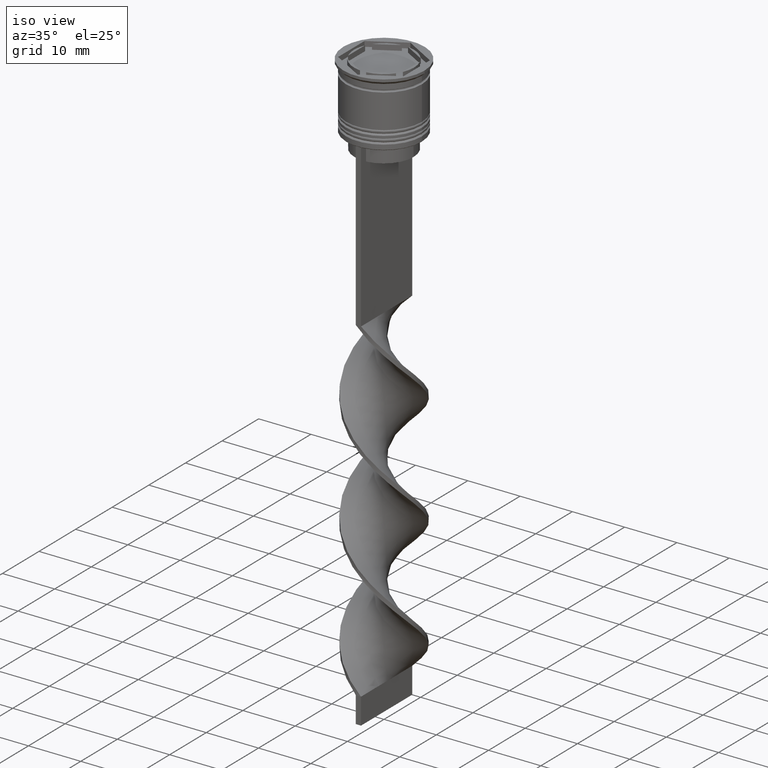
[diagram: clean part render]
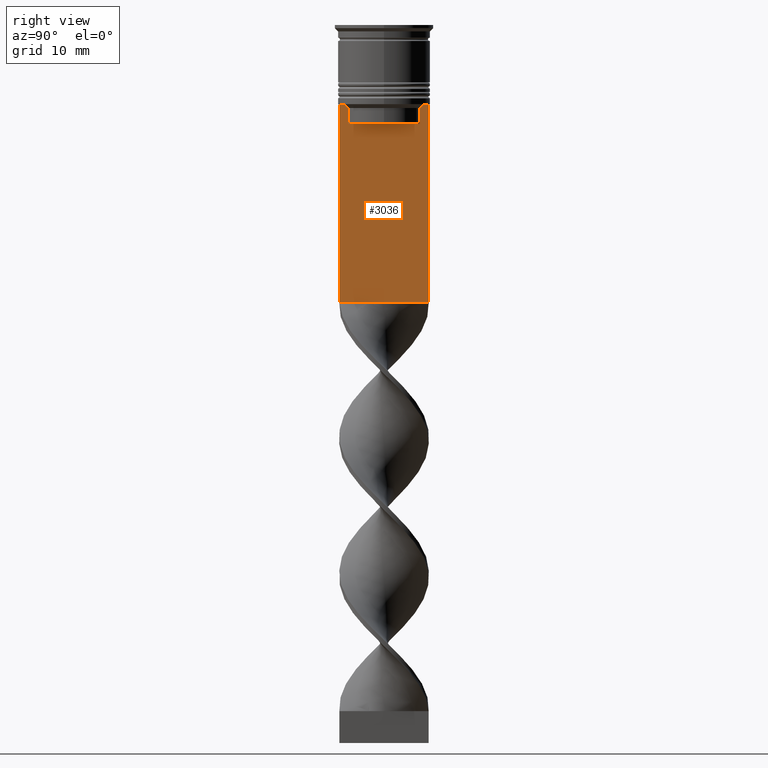
[diagram: tour spotlight — one face highlighted and labeled with its STEP entity id]
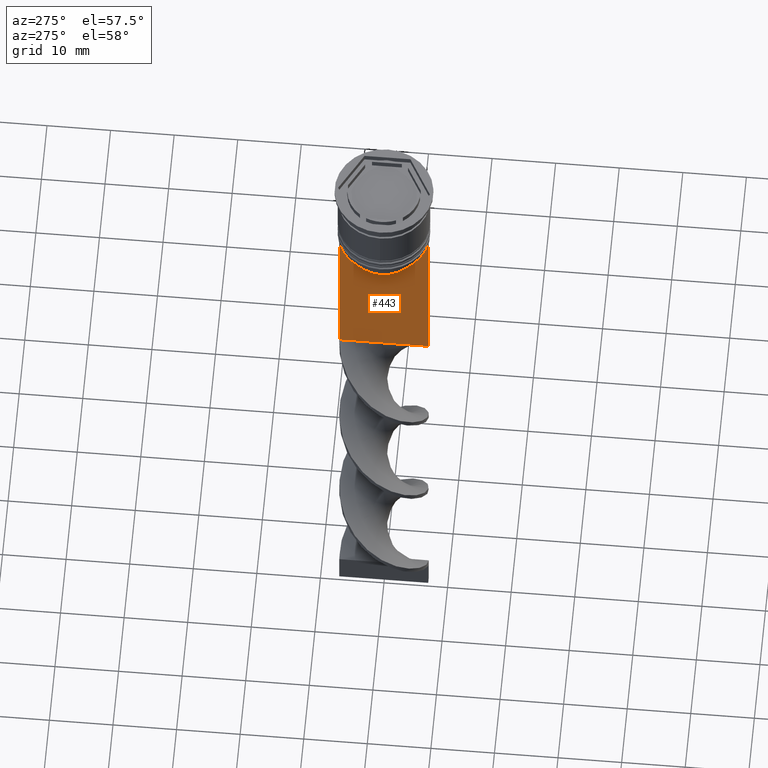
[diagram: tour spotlight — one face highlighted and labeled with its STEP entity id]
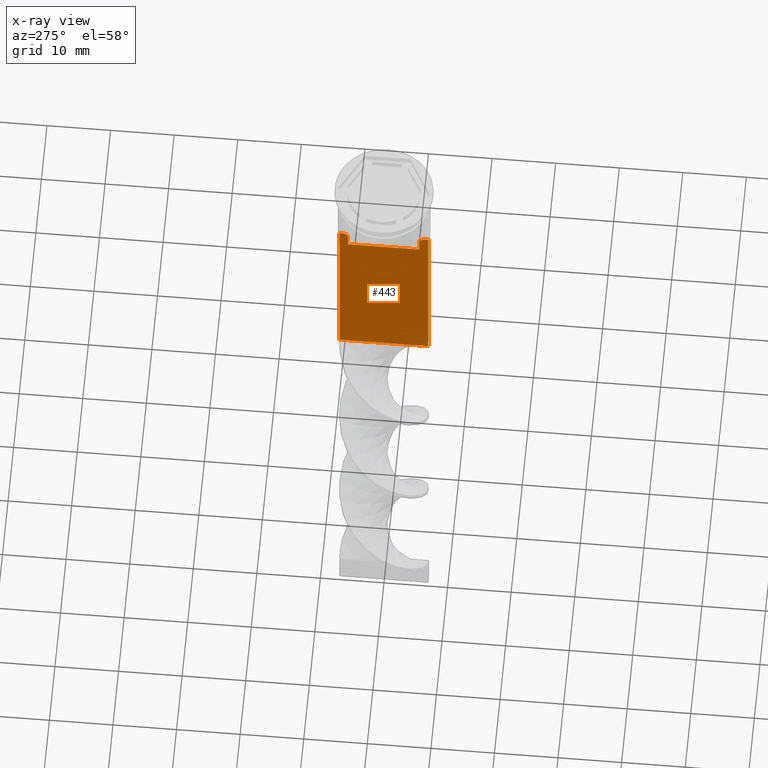
[diagram: x-ray of the same camera — body ghosted, this tour face saturated]
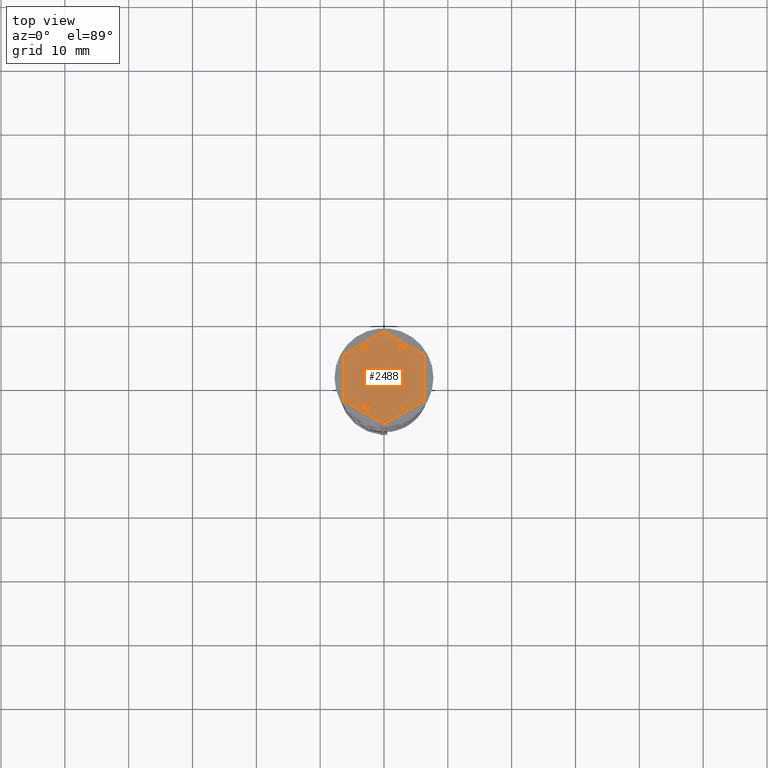
[diagram: tour spotlight — one face highlighted and labeled with its STEP entity id]
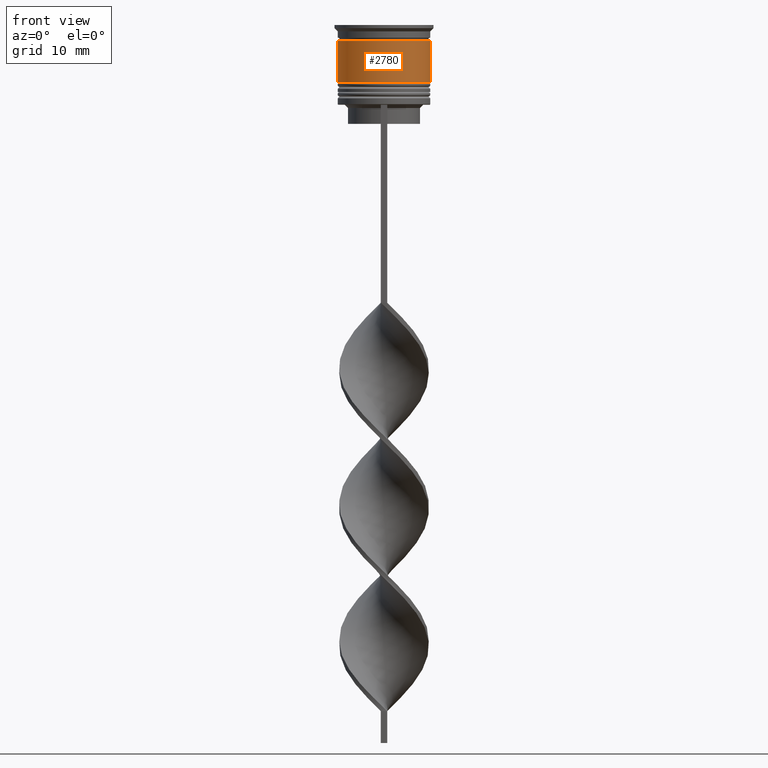
[diagram: tour spotlight — one face highlighted and labeled with its STEP entity id]
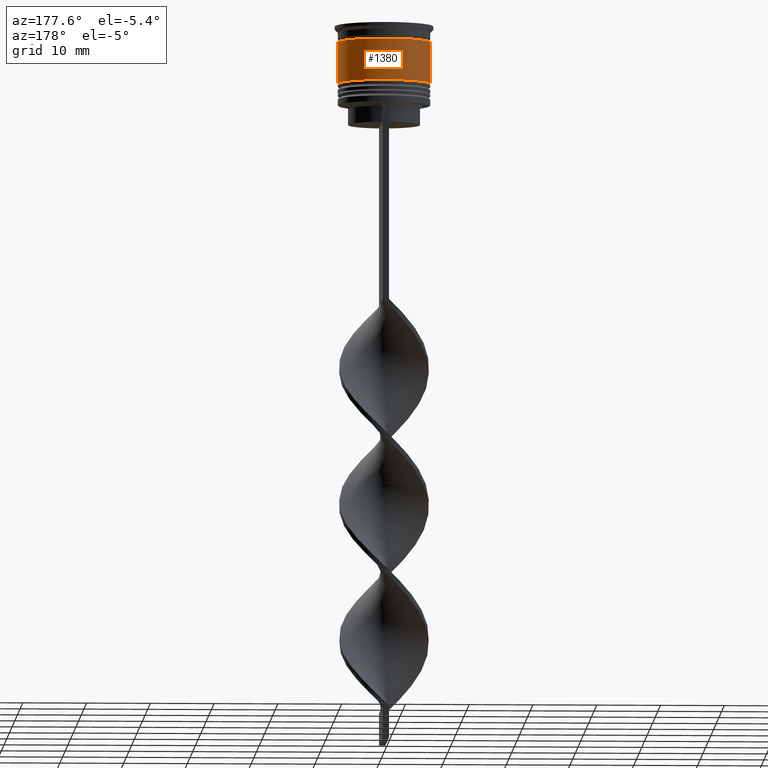
[diagram: tour spotlight — one face highlighted and labeled with its STEP entity id]
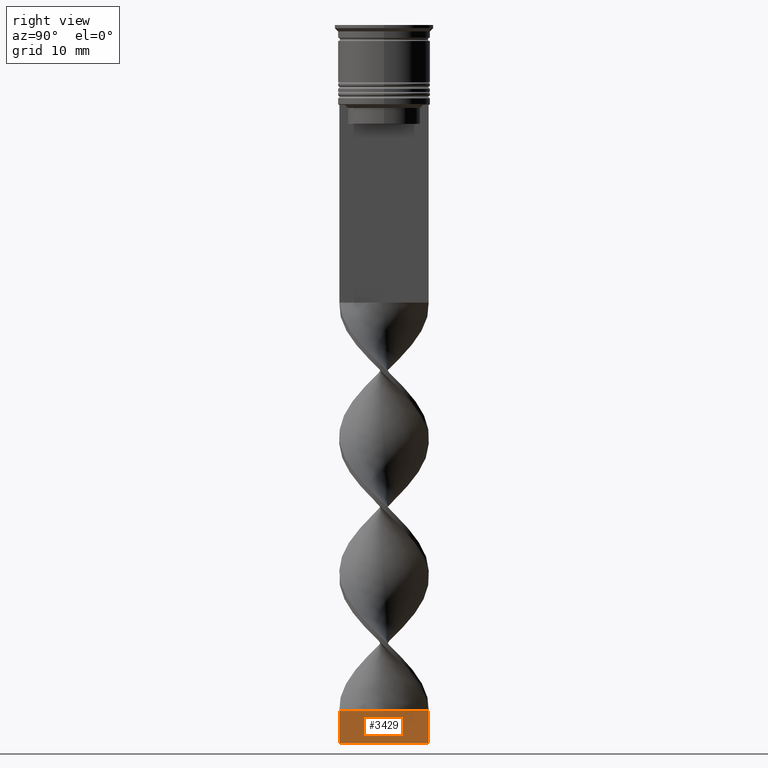
[diagram: tour spotlight — one face highlighted and labeled with its STEP entity id]
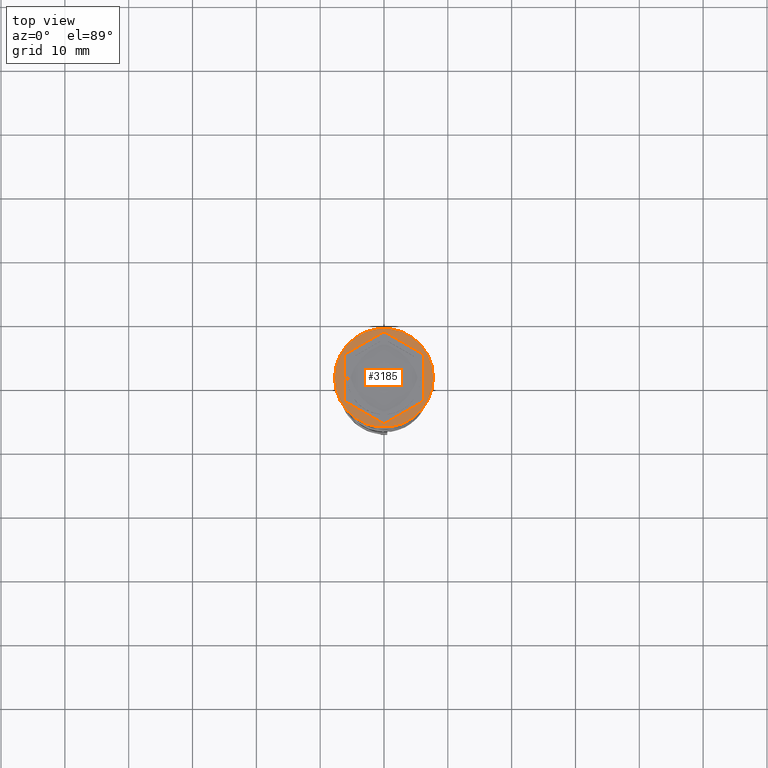
[diagram: tour spotlight — one face highlighted and labeled with its STEP entity id]
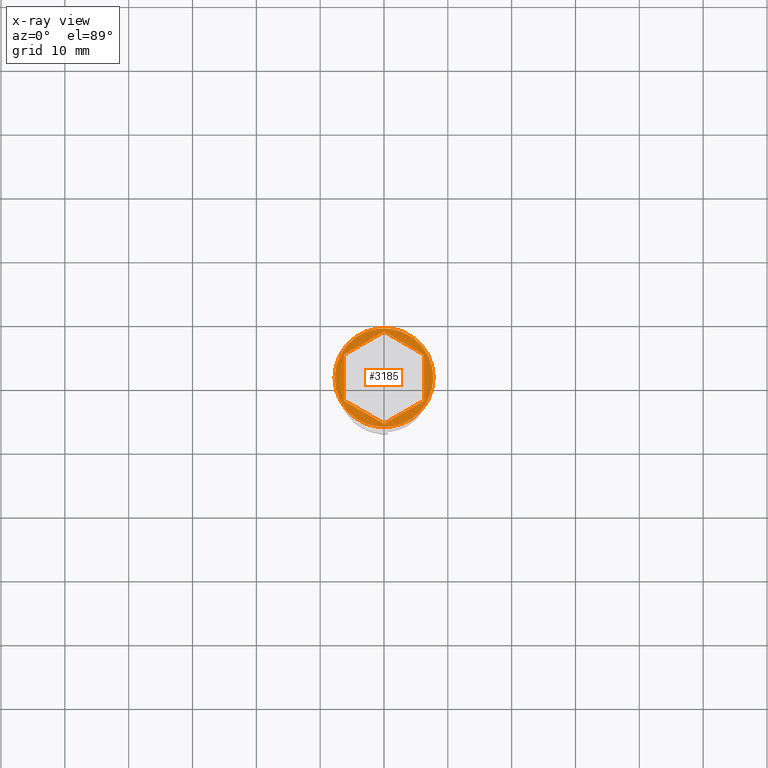
[diagram: x-ray of the same camera — body ghosted, this tour face saturated]
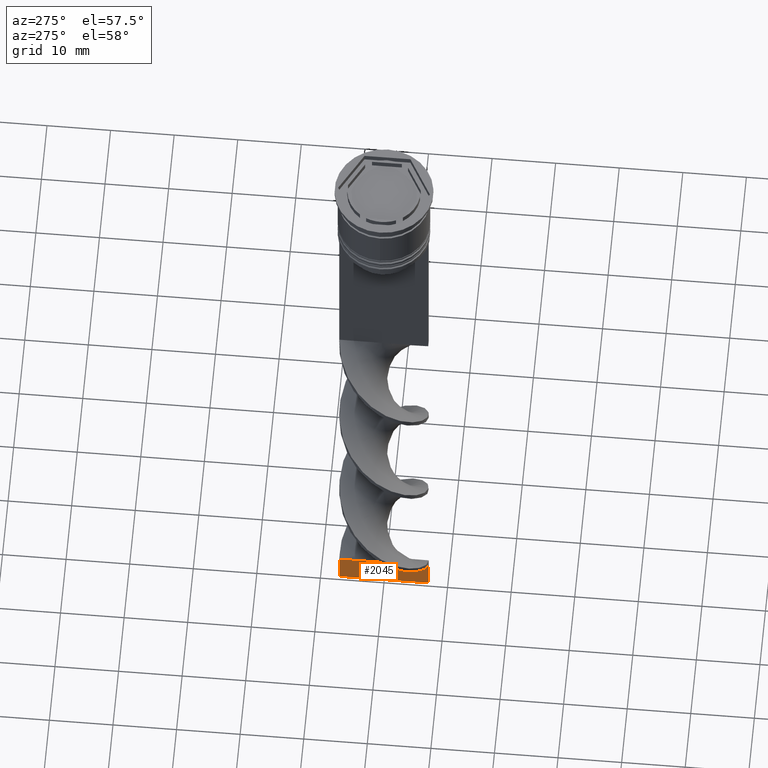
[diagram: tour spotlight — one face highlighted and labeled with its STEP entity id]
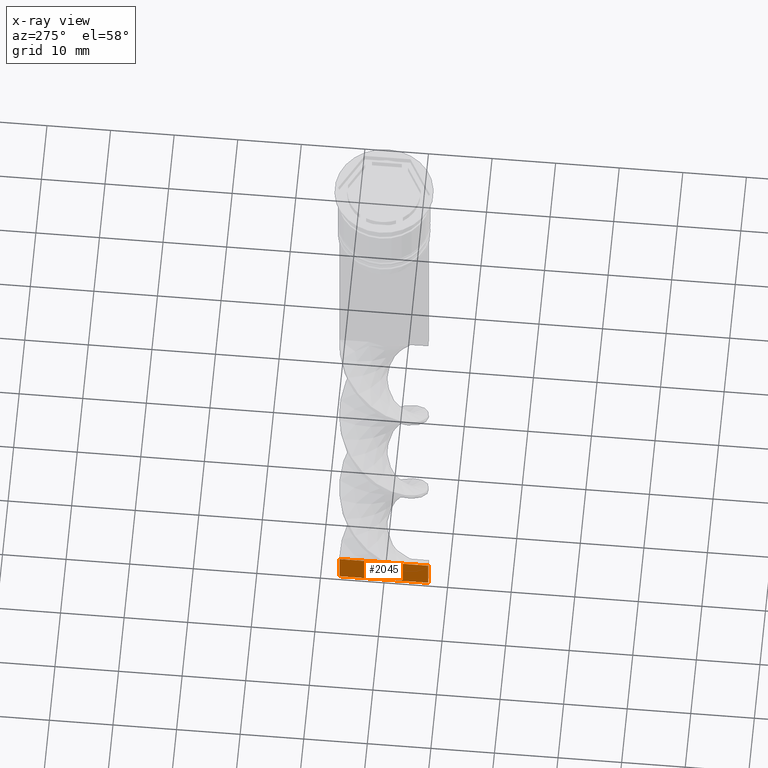
[diagram: x-ray of the same camera — body ghosted, this tour face saturated]
A machine part: a face-by-face anatomy tour. The part has 95 B-rep faces; the first image is the clean iso view, then the 8 largest visible faces are spotlighted one at a time (largest first), each with its STEP entity span.

Face 1 — right view, entity #3036. In plain terms, the highlighted planar face has unit normal (-1, 0, 0).
Definition (entity closure, byte-faithful):
#82 = DIRECTION ( 'NONE',  ( -1.000000000000000000, 0.000000000000000000, 0.000000000000000000 ) ) ;
#97 = DIRECTION ( 'NONE',  ( 0.000000000000000000, -1.000000000000000000, 0.000000000000000000 ) ) ;
#187 = VERTEX_POINT ( 'NONE', #2152 ) ;
#233 = VECTOR ( 'NONE', #2291, 1000.000000000000000 ) ;
#253 = EDGE_CURVE ( 'NONE', #1728, #899, #1480, .T. ) ;
#332 = VERTEX_POINT ( 'NONE', #2268 ) ;
#450 = ORIENTED_EDGE ( 'NONE', *, *, #2090, .T. ) ;
#579 = PLANE ( 'NONE',  #1377 ) ;
#599 = VERTEX_POINT ( 'NONE', #3193 ) ;
#706 = ORIENTED_EDGE ( 'NONE', *, *, #3390, .T. ) ;
#740 = CARTESIAN_POINT ( 'NONE',  ( 0.5000000000000000000, 5.962396146966409738, -12.66669130573587054 ) ) ;
#785 = DIRECTION ( 'NONE',  ( 0.000000000000000000, -1.000000000000000000, 0.000000000000000000 ) ) ;
#801 = CARTESIAN_POINT ( 'NONE',  ( 0.5000000000000000000, -6.999999999999997335, -12.50000000000000000 ) ) ;
#899 = VERTEX_POINT ( 'NONE', #1911 ) ;
#903 = ORIENTED_EDGE ( 'NONE', *, *, #1375, .T. ) ;
#910 = VECTOR ( 'NONE', #2948, 1000.000000000000000 ) ;
#912 = CARTESIAN_POINT ( 'NONE',  ( 0.5000000000000000000, 5.627832620112292794, 0.000000000000000000 ) ) ;
#923 = CARTESIAN_POINT ( 'NONE',  ( 0.5000000000000000000, -5.627832620112292794, -13.00000000000000000 ) ) ;
#926 = CARTESIAN_POINT ( 'NONE',  ( 0.5000000000000000000, -6.999999999999997335, -12.50000000000000000 ) ) ;
#1091 = VECTOR ( 'NONE', #785, 1000.000000000000000 ) ;
#1105 = VERTEX_POINT ( 'NONE', #2273 ) ;
#1142 = FACE_OUTER_BOUND ( 'NONE', #1885, .T. ) ;
#1219 = EDGE_CURVE ( 'NONE', #1807, #3254, #1808, .T. ) ;
#1307 = EDGE_CURVE ( 'NONE', #187, #1903, #1831, .T. ) ;
#1375 = EDGE_CURVE ( 'NONE', #1903, #332, #1900, .T. ) ;
#1377 = AXIS2_PLACEMENT_3D ( 'NONE', #2761, #82, #2487 ) ;
#1469 = ORIENTED_EDGE ( 'NONE', *, *, #1307, .T. ) ;
#1480 = LINE ( 'NONE', #2321, #1594 ) ;
#1485 = CARTESIAN_POINT ( 'NONE',  ( 0.5000000000000000000, -6.999999999999997335, 1.535668847618198329 ) ) ;
#1539 = ORIENTED_EDGE ( 'NONE', *, *, #3208, .T. ) ;
#1540 = CARTESIAN_POINT ( 'NONE',  ( 0.5000000000000000000, 5.649999999999998579, -15.50000000000000000 ) ) ;
#1594 = VECTOR ( 'NONE', #1734, 1000.000000000000000 ) ;
#1639 = CARTESIAN_POINT ( 'NONE',  ( 0.5000000000000000000, -6.999999999999997335, -12.50000000000000000 ) ) ;
#1700 = CARTESIAN_POINT ( 'NONE',  ( 0.5000000000000000000, -5.627832620112292794, -15.50000000000000000 ) ) ;
#1728 = VERTEX_POINT ( 'NONE', #2137 ) ;
#1734 = DIRECTION ( 'NONE',  ( 0.000000000000000000, 0.000000000000000000, -1.000000000000000000 ) ) ;
#1807 = VERTEX_POINT ( 'NONE', #1639 ) ;
#1808 = LINE ( 'NONE', #1485, #233 ) ;
#1831 = LINE ( 'NONE', #1540, #3406 ) ;
#1837 = CARTESIAN_POINT ( 'NONE',  ( 0.5000000000000000000, 5.795128834036803234, -12.83336016107156574 ) ) ;
#1840 = EDGE_CURVE ( 'NONE', #2252, #187, #1894, .T. ) ;
#1850 = LINE ( 'NONE', #2163, #910 ) ;
#1885 = EDGE_LOOP ( 'NONE', ( #2202, #450, #3408, #1469, #903, #1539, #706, #2876, #3395, #3274 ) ) ;
#1894 = LINE ( 'NONE', #912, #3023 ) ;
#1900 = LINE ( 'NONE', #3515, #2964 ) ;
#1903 = VERTEX_POINT ( 'NONE', #1700 ) ;
#1911 = CARTESIAN_POINT ( 'NONE',  ( 0.5000000000000000000, 7.000000000000002665, -43.50000000000000000 ) ) ;
#1965 = LINE ( 'NONE', #926, #2971 ) ;
#2025 = DIRECTION ( 'NONE',  ( 0.000000000000000000, 0.000000000000000000, -1.000000000000000000 ) ) ;
#2082 = B_SPLINE_CURVE_WITH_KNOTS ( 'NONE', 3,
 ( #3186, #740, #1837, #2923 ),
 .UNSPECIFIED., .F., .F.,
 ( 4, 4 ),
 ( 0.01045365750109871796, 0.01116204421161398619 ),
 .UNSPECIFIED. ) ;
#2090 = EDGE_CURVE ( 'NONE', #599, #2252, #2082, .T. ) ;
#2137 = CARTESIAN_POINT ( 'NONE',  ( 0.5000000000000000000, 7.000000000000002665, -12.50000000000000000 ) ) ;
#2152 = CARTESIAN_POINT ( 'NONE',  ( 0.5000000000000000000, 5.627832620112292794, -15.50000000000000000 ) ) ;
#2163 = CARTESIAN_POINT ( 'NONE',  ( 0.5000000000000000000, -6.999999999999997335, -43.50000000000000000 ) ) ;
#2202 = ORIENTED_EDGE ( 'NONE', *, *, #2386, .T. ) ;
#2252 = VERTEX_POINT ( 'NONE', #2405 ) ;
#2268 = CARTESIAN_POINT ( 'NONE',  ( 0.5000000000000000000, -5.627832620112292794, -13.00000000000000000 ) ) ;
#2273 = CARTESIAN_POINT ( 'NONE',  ( 0.5000000000000000000, -6.129641098791995368, -12.50000000000000000 ) ) ;
#2291 = DIRECTION ( 'NONE',  ( 0.000000000000000000, 0.000000000000000000, -1.000000000000000000 ) ) ;
#2321 = CARTESIAN_POINT ( 'NONE',  ( 0.5000000000000000000, 7.000000000000002665, 1.535668847618198329 ) ) ;
#2386 = EDGE_CURVE ( 'NONE', #1728, #599, #1965, .T. ) ;
#2405 = CARTESIAN_POINT ( 'NONE',  ( 0.5000000000000000000, 5.627832620112292794, -13.00000000000000000 ) ) ;
#2449 = DIRECTION ( 'NONE',  ( -0.000000000000000000, -0.000000000000000000, 1.000000000000000000 ) ) ;
#2487 = DIRECTION ( 'NONE',  ( 0.000000000000000000, 0.000000000000000000, 1.000000000000000000 ) ) ;
#2598 = EDGE_CURVE ( 'NONE', #3254, #899, #1850, .T. ) ;
#2636 = DIRECTION ( 'NONE',  ( 0.000000000000000000, -1.000000000000000000, 0.000000000000000000 ) ) ;
#2653 = CARTESIAN_POINT ( 'NONE',  ( 0.5000000000000000000, -5.962396079681185235, -12.66669137279835589 ) ) ;
#2761 = CARTESIAN_POINT ( 'NONE',  ( 0.5000000000000000000, -6.999999999999997335, 1.535668847618198329 ) ) ;
#2876 = ORIENTED_EDGE ( 'NONE', *, *, #1219, .T. ) ;
#2923 = CARTESIAN_POINT ( 'NONE',  ( 0.5000000000000000000, 5.627832620112292794, -13.00000000000000000 ) ) ;
#2948 = DIRECTION ( 'NONE',  ( 0.000000000000000000, 1.000000000000000000, 0.000000000000000000 ) ) ;
#2964 = VECTOR ( 'NONE', #2449, 1000.000000000000000 ) ;
#2971 = VECTOR ( 'NONE', #97, 1000.000000000000000 ) ;
#3023 = VECTOR ( 'NONE', #2025, 1000.000000000000000 ) ;
#3036 = ADVANCED_FACE ( 'NONE', ( #1142 ), #579, .F. ) ;
#3126 = CARTESIAN_POINT ( 'NONE',  ( 0.5000000000000000000, -6.999999999999997335, -43.50000000000000000 ) ) ;
#3180 = CARTESIAN_POINT ( 'NONE',  ( 0.5000000000000000000, -6.129641098791995368, -12.50000000000000000 ) ) ;
#3186 = CARTESIAN_POINT ( 'NONE',  ( 0.5000000000000000000, 6.129641098791995368, -12.50000000000000000 ) ) ;
#3193 = CARTESIAN_POINT ( 'NONE',  ( 0.5000000000000000000, 6.129641098791995368, -12.50000000000000000 ) ) ;
#3208 = EDGE_CURVE ( 'NONE', #332, #1105, #3279, .T. ) ;
#3254 = VERTEX_POINT ( 'NONE', #3126 ) ;
#3274 = ORIENTED_EDGE ( 'NONE', *, *, #253, .F. ) ;
#3279 = B_SPLINE_CURVE_WITH_KNOTS ( 'NONE', 3,
 ( #923, #3382, #2653, #3180 ),
 .UNSPECIFIED., .F., .F.,
 ( 4, 4 ),
 ( 0.02651134470867368836, 0.02721991123504332449 ),
 .UNSPECIFIED. ) ;
#3382 = CARTESIAN_POINT ( 'NONE',  ( 0.5000000000000000000, -5.795128760752289665, -12.83336023406855197 ) ) ;
#3390 = EDGE_CURVE ( 'NONE', #1105, #1807, #3514, .T. ) ;
#3395 = ORIENTED_EDGE ( 'NONE', *, *, #2598, .T. ) ;
#3406 = VECTOR ( 'NONE', #2636, 1000.000000000000000 ) ;
#3408 = ORIENTED_EDGE ( 'NONE', *, *, #1840, .T. ) ;
#3514 = LINE ( 'NONE', #801, #1091 ) ;
#3515 = CARTESIAN_POINT ( 'NONE',  ( 0.5000000000000000000, -5.627832620112292794, 0.000000000000000000 ) ) ;

Face 2 — auxiliary view, entity #443. An x-ray twin of the same camera follows (body ghosted, this face saturated) — the face is partly hidden behind the body. In plain terms, the highlighted planar face has unit normal (-1, 0, 0).
Definition (entity closure, byte-faithful):
#11 = DIRECTION ( 'NONE',  ( 0.000000000000000000, 1.000000000000000000, 0.000000000000000000 ) ) ;
#72 = B_SPLINE_CURVE_WITH_KNOTS ( 'NONE', 3,
 ( #2718, #1909, #2997, #2705 ),
 .UNSPECIFIED., .F., .F.,
 ( 4, 4 ),
 ( 0.01045365750109871796, 0.01116204421161398619 ),
 .UNSPECIFIED. ) ;
#143 = EDGE_CURVE ( 'NONE', #2023, #1803, #1240, .T. ) ;
#144 = CARTESIAN_POINT ( 'NONE',  ( -0.5000000000000000000, -5.962396079681185235, -12.66669137279835589 ) ) ;
#149 = CARTESIAN_POINT ( 'NONE',  ( -0.5000000000000000000, -6.129641098791995368, -12.50000000000000000 ) ) ;
#171 = VECTOR ( 'NONE', #2145, 1000.000000000000000 ) ;
#200 = DIRECTION ( 'NONE',  ( 0.000000000000000000, -1.000000000000000000, 0.000000000000000000 ) ) ;
#219 = LINE ( 'NONE', #1306, #171 ) ;
#239 = VECTOR ( 'NONE', #900, 1000.000000000000000 ) ;
#338 = CARTESIAN_POINT ( 'NONE',  ( -0.5000000000000000000, 7.000000000000002665, 1.535668847618198329 ) ) ;
#369 = CARTESIAN_POINT ( 'NONE',  ( -0.5000000000000000000, -6.999999999999997335, 1.535668847618198329 ) ) ;
#371 = CARTESIAN_POINT ( 'NONE',  ( -0.5000000000000000000, -5.627832620112292794, -15.50000000000000000 ) ) ;
#383 = EDGE_CURVE ( 'NONE', #3348, #1687, #800, .T. ) ;
#443 = ADVANCED_FACE ( 'NONE', ( #2303 ), #2822, .T. ) ;
#512 = CARTESIAN_POINT ( 'NONE',  ( -0.5000000000000000000, 5.627832620112292794, -13.00000000000000000 ) ) ;
#516 = CARTESIAN_POINT ( 'NONE',  ( -0.5000000000000000000, 6.129641098791995368, -12.50000000000000000 ) ) ;
#555 = ORIENTED_EDGE ( 'NONE', *, *, #2756, .T. ) ;
#668 = CARTESIAN_POINT ( 'NONE',  ( -0.5000000000000000000, -5.795128760752289665, -12.83336023406855197 ) ) ;
#800 = LINE ( 'NONE', #1613, #3187 ) ;
#817 = ORIENTED_EDGE ( 'NONE', *, *, #1498, .F. ) ;
#833 = DIRECTION ( 'NONE',  ( 0.000000000000000000, -1.000000000000000000, 0.000000000000000000 ) ) ;
#900 = DIRECTION ( 'NONE',  ( 0.000000000000000000, 0.000000000000000000, -1.000000000000000000 ) ) ;
#1016 = LINE ( 'NONE', #2376, #3202 ) ;
#1240 = LINE ( 'NONE', #2043, #2272 ) ;
#1306 = CARTESIAN_POINT ( 'NONE',  ( -0.5000000000000000000, -5.627832620112292794, 0.000000000000000000 ) ) ;
#1365 = CARTESIAN_POINT ( 'NONE',  ( -0.5000000000000000000, -6.999999999999997335, 1.535668847618198329 ) ) ;
#1394 = CARTESIAN_POINT ( 'NONE',  ( -0.5000000000000000000, 5.627832620112292794, 0.000000000000000000 ) ) ;
#1455 = EDGE_CURVE ( 'NONE', #2823, #2431, #219, .T. ) ;
#1458 = DIRECTION ( 'NONE',  ( -1.000000000000000000, 0.000000000000000000, 0.000000000000000000 ) ) ;
#1498 = EDGE_CURVE ( 'NONE', #2431, #3348, #2148, .T. ) ;
#1554 = EDGE_CURVE ( 'NONE', #2287, #2239, #2482, .T. ) ;
#1603 = CARTESIAN_POINT ( 'NONE',  ( -0.5000000000000000000, 5.627832620112292794, -15.50000000000000000 ) ) ;
#1613 = CARTESIAN_POINT ( 'NONE',  ( -0.5000000000000000000, -6.999999999999997335, -12.50000000000000000 ) ) ;
#1620 = LINE ( 'NONE', #1365, #2569 ) ;
#1631 = ORIENTED_EDGE ( 'NONE', *, *, #1455, .F. ) ;
#1687 = VERTEX_POINT ( 'NONE', #1819 ) ;
#1705 = ORIENTED_EDGE ( 'NONE', *, *, #3378, .F. ) ;
#1744 = DIRECTION ( 'NONE',  ( 0.000000000000000000, 0.000000000000000000, -1.000000000000000000 ) ) ;
#1762 = CARTESIAN_POINT ( 'NONE',  ( -0.5000000000000000000, -6.129641098791995368, -12.50000000000000000 ) ) ;
#1803 = VERTEX_POINT ( 'NONE', #516 ) ;
#1813 = EDGE_CURVE ( 'NONE', #1803, #2287, #72, .T. ) ;
#1817 = DIRECTION ( 'NONE',  ( 0.000000000000000000, -1.000000000000000000, 0.000000000000000000 ) ) ;
#1819 = CARTESIAN_POINT ( 'NONE',  ( -0.5000000000000000000, -6.999999999999997335, -12.50000000000000000 ) ) ;
#1909 = CARTESIAN_POINT ( 'NONE',  ( -0.5000000000000000000, 5.962396146966409738, -12.66669130573587054 ) ) ;
#1910 = VERTEX_POINT ( 'NONE', #3114 ) ;
#2023 = VERTEX_POINT ( 'NONE', #3317 ) ;
#2043 = CARTESIAN_POINT ( 'NONE',  ( -0.5000000000000000000, -6.999999999999997335, -12.50000000000000000 ) ) ;
#2046 = CARTESIAN_POINT ( 'NONE',  ( -0.5000000000000000000, -5.627832620112292794, -13.00000000000000000 ) ) ;
#2116 = VECTOR ( 'NONE', #833, 1000.000000000000000 ) ;
#2145 = DIRECTION ( 'NONE',  ( -0.000000000000000000, -0.000000000000000000, 1.000000000000000000 ) ) ;
#2148 = B_SPLINE_CURVE_WITH_KNOTS ( 'NONE', 3,
 ( #2046, #668, #144, #1762 ),
 .UNSPECIFIED., .F., .F.,
 ( 4, 4 ),
 ( 0.02651134470867368836, 0.02721991123504332449 ),
 .UNSPECIFIED. ) ;
#2236 = EDGE_CURVE ( 'NONE', #1687, #2937, #1620, .T. ) ;
#2239 = VERTEX_POINT ( 'NONE', #1603 ) ;
#2267 = LINE ( 'NONE', #3343, #2116 ) ;
#2271 = CARTESIAN_POINT ( 'NONE',  ( -0.5000000000000000000, -5.627832620112292794, -13.00000000000000000 ) ) ;
#2272 = VECTOR ( 'NONE', #1817, 1000.000000000000000 ) ;
#2287 = VERTEX_POINT ( 'NONE', #512 ) ;
#2303 = FACE_OUTER_BOUND ( 'NONE', #2577, .T. ) ;
#2332 = AXIS2_PLACEMENT_3D ( 'NONE', #369, #1458, #2552 ) ;
#2339 = ORIENTED_EDGE ( 'NONE', *, *, #2835, .F. ) ;
#2361 = CARTESIAN_POINT ( 'NONE',  ( -0.5000000000000000000, -6.999999999999997335, -43.50000000000000000 ) ) ;
#2376 = CARTESIAN_POINT ( 'NONE',  ( -0.5000000000000000000, -6.999999999999997335, -43.50000000000000000 ) ) ;
#2431 = VERTEX_POINT ( 'NONE', #2271 ) ;
#2477 = ORIENTED_EDGE ( 'NONE', *, *, #383, .F. ) ;
#2482 = LINE ( 'NONE', #1394, #3411 ) ;
#2552 = DIRECTION ( 'NONE',  ( 0.000000000000000000, 0.000000000000000000, 1.000000000000000000 ) ) ;
#2569 = VECTOR ( 'NONE', #3006, 1000.000000000000000 ) ;
#2577 = EDGE_LOOP ( 'NONE', ( #3071, #2605, #555, #1705, #2752, #2477, #817, #1631, #2339, #2659 ) ) ;
#2605 = ORIENTED_EDGE ( 'NONE', *, *, #143, .F. ) ;
#2659 = ORIENTED_EDGE ( 'NONE', *, *, #1554, .F. ) ;
#2705 = CARTESIAN_POINT ( 'NONE',  ( -0.5000000000000000000, 5.627832620112292794, -13.00000000000000000 ) ) ;
#2718 = CARTESIAN_POINT ( 'NONE',  ( -0.5000000000000000000, 6.129641098791995368, -12.50000000000000000 ) ) ;
#2752 = ORIENTED_EDGE ( 'NONE', *, *, #2236, .F. ) ;
#2756 = EDGE_CURVE ( 'NONE', #2023, #1910, #3020, .T. ) ;
#2822 = PLANE ( 'NONE',  #2332 ) ;
#2823 = VERTEX_POINT ( 'NONE', #371 ) ;
#2835 = EDGE_CURVE ( 'NONE', #2239, #2823, #2267, .T. ) ;
#2937 = VERTEX_POINT ( 'NONE', #2361 ) ;
#2997 = CARTESIAN_POINT ( 'NONE',  ( -0.5000000000000000000, 5.795128834036803234, -12.83336016107156574 ) ) ;
#3006 = DIRECTION ( 'NONE',  ( 0.000000000000000000, 0.000000000000000000, -1.000000000000000000 ) ) ;
#3020 = LINE ( 'NONE', #338, #239 ) ;
#3071 = ORIENTED_EDGE ( 'NONE', *, *, #1813, .F. ) ;
#3114 = CARTESIAN_POINT ( 'NONE',  ( -0.5000000000000000000, 7.000000000000002665, -43.50000000000000000 ) ) ;
#3187 = VECTOR ( 'NONE', #200, 1000.000000000000000 ) ;
#3202 = VECTOR ( 'NONE', #11, 1000.000000000000000 ) ;
#3317 = CARTESIAN_POINT ( 'NONE',  ( -0.5000000000000000000, 7.000000000000002665, -12.50000000000000000 ) ) ;
#3343 = CARTESIAN_POINT ( 'NONE',  ( -0.5000000000000000000, 5.649999999999998579, -15.50000000000000000 ) ) ;
#3348 = VERTEX_POINT ( 'NONE', #149 ) ;
#3378 = EDGE_CURVE ( 'NONE', #2937, #1910, #1016, .T. ) ;
#3411 = VECTOR ( 'NONE', #1744, 1000.000000000000000 ) ;

Face 3 — top view, entity #2488. In plain terms, the highlighted planar face has unit normal (0, 0, 1).
Definition (entity closure, byte-faithful):
#16 = VERTEX_POINT ( 'NONE', #1783 ) ;
#24 = CARTESIAN_POINT ( 'NONE',  ( 0.5939903988410126789, 5.719237309824160675, -1.000000000000000888 ) ) ;
#29 = CARTESIAN_POINT ( 'NONE',  ( 4.656009601158990208, -3.374029429912445810, -1.000000000000000888 ) ) ;
#41 = LINE ( 'NONE', #3083, #1371 ) ;
#117 = AXIS2_PLACEMENT_3D ( 'NONE', #463, #1857, #2098 ) ;
#178 = CIRCLE ( 'NONE', #1030, 5.750000000000000000 ) ;
#184 = AXIS2_PLACEMENT_3D ( 'NONE', #1830, #411, #1231 ) ;
#231 = DIRECTION ( 'NONE',  ( 0.000000000000000000, 0.000000000000000000, 1.000000000000000000 ) ) ;
#238 = DIRECTION ( 'NONE',  ( 1.000000000000000000, 0.000000000000000000, 0.000000000000000000 ) ) ;
#257 = CARTESIAN_POINT ( 'NONE',  ( -5.249999999999999112, -2.345207879911715310, -1.000000000000000888 ) ) ;
#258 = LINE ( 'NONE', #1648, #1197 ) ;
#261 = DIRECTION ( 'NONE',  ( 0.000000000000000000, 0.000000000000000000, 1.000000000000000000 ) ) ;
#288 = DIRECTION ( 'NONE',  ( -0.8660254037844384856, 0.5000000000000002220, 0.000000000000000000 ) ) ;
#337 = EDGE_CURVE ( 'NONE', #2009, #691, #1999, .T. ) ;
#349 = CARTESIAN_POINT ( 'NONE',  ( -4.656009601158989319, 3.374029429912446698, -1.000000000000000888 ) ) ;
#353 = CIRCLE ( 'NONE', #806, 5.750000000000000000 ) ;
#374 = EDGE_CURVE ( 'NONE', #375, #2302, #386, .T. ) ;
#375 = VERTEX_POINT ( 'NONE', #3496 ) ;
#376 = FACE_BOUND ( 'NONE', #503, .T. ) ;
#386 = LINE ( 'NONE', #1038, #3066 ) ;
#389 = VERTEX_POINT ( 'NONE', #1592 ) ;
#397 = ORIENTED_EDGE ( 'NONE', *, *, #3267, .F. ) ;
#401 = DIRECTION ( 'NONE',  ( 0.000000000000000000, 1.000000000000000000, 0.000000000000000000 ) ) ;
#407 = VERTEX_POINT ( 'NONE', #2930 ) ;
#411 = DIRECTION ( 'NONE',  ( 0.000000000000000000, 0.000000000000000000, 1.000000000000000000 ) ) ;
#420 = CARTESIAN_POINT ( 'NONE',  ( -5.249999999999999112, 3.031088913245535199, -1.000000000000000888 ) ) ;
#463 = CARTESIAN_POINT ( 'NONE',  ( 0.000000000000000000, 0.000000000000000000, -1.000000000000000000 ) ) ;
#476 = LINE ( 'NONE', #3157, #574 ) ;
#503 = EDGE_LOOP ( 'NONE', ( #2391, #1161 ) ) ;
#518 = EDGE_LOOP ( 'NONE', ( #1208, #1918 ) ) ;
#521 = VERTEX_POINT ( 'NONE', #2928 ) ;
#525 = VECTOR ( 'NONE', #288, 1000.000000000000114 ) ;
#574 = VECTOR ( 'NONE', #1221, 1000.000000000000000 ) ;
#590 = CARTESIAN_POINT ( 'NONE',  ( -6.249999999999999112, 3.608439182435158710, -1.000000000000000000 ) ) ;
#604 = ORIENTED_EDGE ( 'NONE', *, *, #3491, .F. ) ;
#609 = ORIENTED_EDGE ( 'NONE', *, *, #374, .T. ) ;
#611 = CARTESIAN_POINT ( 'NONE',  ( 0.000000000000000000, 0.000000000000000000, -1.000000000000000000 ) ) ;
#648 = FACE_BOUND ( 'NONE', #518, .T. ) ;
#660 = EDGE_LOOP ( 'NONE', ( #604, #3512 ) ) ;
#691 = VERTEX_POINT ( 'NONE', #1131 ) ;
#746 = CIRCLE ( 'NONE', #2918, 5.750000000000000000 ) ;
#763 = CARTESIAN_POINT ( 'NONE',  ( 0.000000000000000000, 0.000000000000000000, -1.000000000000000000 ) ) ;
#783 = VERTEX_POINT ( 'NONE', #24 ) ;
#792 = VECTOR ( 'NONE', #2719, 1000.000000000000227 ) ;
#796 = LINE ( 'NONE', #1624, #792 ) ;
#802 = VECTOR ( 'NONE', #2651, 1000.000000000000000 ) ;
#806 = AXIS2_PLACEMENT_3D ( 'NONE', #2986, #2672, #238 ) ;
#853 = DIRECTION ( 'NONE',  ( 0.000000000000000000, 0.000000000000000000, 1.000000000000000000 ) ) ;
#868 = FACE_OUTER_BOUND ( 'NONE', #3448, .T. ) ;
#874 = EDGE_CURVE ( 'NONE', #3135, #3012, #796, .T. ) ;
#933 = DIRECTION ( 'NONE',  ( -1.430775808321103440E-16, -1.000000000000000000, 0.000000000000000000 ) ) ;
#954 = CARTESIAN_POINT ( 'NONE',  ( -5.750000000000000000, 0.000000000000000000, -1.000000000000000000 ) ) ;
#976 = EDGE_CURVE ( 'NONE', #1381, #2665, #3141, .T. ) ;
#1030 = AXIS2_PLACEMENT_3D ( 'NONE', #3270, #261, #3503 ) ;
#1038 = CARTESIAN_POINT ( 'NONE',  ( 6.250000000000000000, 3.608439182435161374, -1.000000000000000000 ) ) ;
#1058 = VERTEX_POINT ( 'NONE', #1160 ) ;
#1093 = DIRECTION ( 'NONE',  ( 0.8660254037844387076, -0.4999999999999998335, 0.000000000000000000 ) ) ;
#1123 = DIRECTION ( 'NONE',  ( 1.000000000000000000, 0.000000000000000000, -0.000000000000000000 ) ) ;
#1131 = CARTESIAN_POINT ( 'NONE',  ( -0.5939903988410105695, 5.719237309824159787, -1.000000000000000888 ) ) ;
#1144 = CIRCLE ( 'NONE', #184, 5.750000000000000000 ) ;
#1160 = CARTESIAN_POINT ( 'NONE',  ( 5.249999999999997335, 2.345207879911718862, -1.000000000000000888 ) ) ;
#1161 = ORIENTED_EDGE ( 'NONE', *, *, #1177, .F. ) ;
#1177 = EDGE_CURVE ( 'NONE', #2582, #407, #2307, .T. ) ;
#1188 = VECTOR ( 'NONE', #401, 1000.000000000000000 ) ;
#1196 = FACE_BOUND ( 'NONE', #1974, .T. ) ;
#1197 = VECTOR ( 'NONE', #1093, 1000.000000000000114 ) ;
#1203 = ORIENTED_EDGE ( 'NONE', *, *, #976, .F. ) ;
#1208 = ORIENTED_EDGE ( 'NONE', *, *, #1704, .F. ) ;
#1221 = DIRECTION ( 'NONE',  ( 0.8660254037844385966, 0.5000000000000001110, 0.000000000000000000 ) ) ;
#1231 = DIRECTION ( 'NONE',  ( 1.000000000000000000, 0.000000000000000000, 0.000000000000000000 ) ) ;
#1297 = ORIENTED_EDGE ( 'NONE', *, *, #2679, .F. ) ;
#1305 = DIRECTION ( 'NONE',  ( 0.000000000000000000, 0.000000000000000000, 1.000000000000000000 ) ) ;
#1338 = ORIENTED_EDGE ( 'NONE', *, *, #1668, .T. ) ;
#1371 = VECTOR ( 'NONE', #933, 1000.000000000000000 ) ;
#1374 = AXIS2_PLACEMENT_3D ( 'NONE', #611, #1398, #1123 ) ;
#1381 = VERTEX_POINT ( 'NONE', #257 ) ;
#1398 = DIRECTION ( 'NONE',  ( 0.000000000000000000, 0.000000000000000000, 1.000000000000000000 ) ) ;
#1422 = CIRCLE ( 'NONE', #3353, 5.750000000000000000 ) ;
#1465 = FACE_BOUND ( 'NONE', #660, .T. ) ;
#1467 = DIRECTION ( 'NONE',  ( -0.8660254037844385966, -0.5000000000000001110, 0.000000000000000000 ) ) ;
#1473 = EDGE_LOOP ( 'NONE', ( #1735, #1297 ) ) ;
#1497 = ORIENTED_EDGE ( 'NONE', *, *, #2884, .T. ) ;
#1560 = EDGE_CURVE ( 'NONE', #1058, #1633, #41, .T. ) ;
#1592 = CARTESIAN_POINT ( 'NONE',  ( -4.656009601158991096, -3.374029429912444034, -1.000000000000000888 ) ) ;
#1624 = CARTESIAN_POINT ( 'NONE',  ( -6.249999999999999112, -3.608439182435161374, -1.000000000000000000 ) ) ;
#1633 = VERTEX_POINT ( 'NONE', #3102 ) ;
#1648 = CARTESIAN_POINT ( 'NONE',  ( 5.249999999999997335, 3.031088913245537864, -1.000000000000000888 ) ) ;
#1665 = LINE ( 'NONE', #2212, #2107 ) ;
#1668 = EDGE_CURVE ( 'NONE', #2989, #375, #1665, .T. ) ;
#1704 = EDGE_CURVE ( 'NONE', #1633, #1058, #2796, .T. ) ;
#1735 = ORIENTED_EDGE ( 'NONE', *, *, #3495, .F. ) ;
#1740 = CARTESIAN_POINT ( 'NONE',  ( 0.000000000000000000, 7.216878364870320084, -1.000000000000000000 ) ) ;
#1752 = EDGE_CURVE ( 'NONE', #2960, #1381, #1422, .T. ) ;
#1783 = CARTESIAN_POINT ( 'NONE',  ( -6.249999999999999112, 3.608439182435158710, -1.000000000000000000 ) ) ;
#1830 = CARTESIAN_POINT ( 'NONE',  ( 0.000000000000000000, 0.000000000000000000, -1.000000000000000000 ) ) ;
#1857 = DIRECTION ( 'NONE',  ( 0.000000000000000000, 0.000000000000000000, 1.000000000000000000 ) ) ;
#1869 = EDGE_CURVE ( 'NONE', #2302, #16, #2816, .T. ) ;
#1914 = CARTESIAN_POINT ( 'NONE',  ( 0.000000000000000000, 0.000000000000000000, -1.000000000000000000 ) ) ;
#1918 = ORIENTED_EDGE ( 'NONE', *, *, #1560, .F. ) ;
#1940 = VECTOR ( 'NONE', #1467, 1000.000000000000114 ) ;
#1951 = DIRECTION ( 'NONE',  ( 1.000000000000000000, 0.000000000000000000, 0.000000000000000000 ) ) ;
#1974 = EDGE_LOOP ( 'NONE', ( #3311, #1203, #2092 ) ) ;
#1999 = LINE ( 'NONE', #3091, #2329 ) ;
#2009 = VERTEX_POINT ( 'NONE', #349 ) ;
#2027 = EDGE_CURVE ( 'NONE', #3012, #2989, #476, .T. ) ;
#2033 = DIRECTION ( 'NONE',  ( 0.8660254037844387076, 0.4999999999999999445, -0.000000000000000000 ) ) ;
#2092 = ORIENTED_EDGE ( 'NONE', *, *, #1752, .F. ) ;
#2098 = DIRECTION ( 'NONE',  ( 1.000000000000000000, 0.000000000000000000, 0.000000000000000000 ) ) ;
#2107 = VECTOR ( 'NONE', #2682, 1000.000000000000000 ) ;
#2114 = ORIENTED_EDGE ( 'NONE', *, *, #2027, .T. ) ;
#2146 = CARTESIAN_POINT ( 'NONE',  ( -5.249999999999999112, 2.345207879911715310, -1.000000000000000888 ) ) ;
#2196 = EDGE_CURVE ( 'NONE', #407, #2582, #178, .T. ) ;
#2212 = CARTESIAN_POINT ( 'NONE',  ( 6.249999999999998224, -3.608439182435161374, -1.000000000000000000 ) ) ;
#2293 = PLANE ( 'NONE',  #1374 ) ;
#2302 = VERTEX_POINT ( 'NONE', #2699 ) ;
#2307 = LINE ( 'NONE', #2346, #3472 ) ;
#2329 = VECTOR ( 'NONE', #2033, 1000.000000000000000 ) ;
#2346 = CARTESIAN_POINT ( 'NONE',  ( -1.734723475976807094E-15, -6.062177826491069510, -1.000000000000000888 ) ) ;
#2391 = ORIENTED_EDGE ( 'NONE', *, *, #2196, .F. ) ;
#2465 = ORIENTED_EDGE ( 'NONE', *, *, #1869, .T. ) ;
#2470 = CARTESIAN_POINT ( 'NONE',  ( -5.249999999999999112, -3.031088913245534311, -1.000000000000000888 ) ) ;
#2483 = LINE ( 'NONE', #590, #802 ) ;
#2488 = ADVANCED_FACE ( 'NONE', ( #3095, #648, #376, #1465, #1196, #2489, #868 ), #2293, .T. ) ;
#2489 = FACE_BOUND ( 'NONE', #3519, .T. ) ;
#2500 = EDGE_CURVE ( 'NONE', #2665, #2960, #746, .T. ) ;
#2565 = EDGE_CURVE ( 'NONE', #521, #389, #2740, .T. ) ;
#2582 = VERTEX_POINT ( 'NONE', #29 ) ;
#2609 = CARTESIAN_POINT ( 'NONE',  ( 6.249999999999998224, -3.608439182435161374, -1.000000000000000000 ) ) ;
#2651 = DIRECTION ( 'NONE',  ( 0.000000000000000000, -1.000000000000000000, 0.000000000000000000 ) ) ;
#2665 = VERTEX_POINT ( 'NONE', #2146 ) ;
#2672 = DIRECTION ( 'NONE',  ( 0.000000000000000000, 0.000000000000000000, 1.000000000000000000 ) ) ;
#2679 = EDGE_CURVE ( 'NONE', #783, #3261, #258, .T. ) ;
#2682 = DIRECTION ( 'NONE',  ( 2.403703357979454647E-16, 1.000000000000000000, 0.000000000000000000 ) ) ;
#2687 = DIRECTION ( 'NONE',  ( -0.8660254037844388186, 0.4999999999999997224, 0.000000000000000000 ) ) ;
#2699 = CARTESIAN_POINT ( 'NONE',  ( 0.000000000000000000, 7.216878364870320084, -1.000000000000000000 ) ) ;
#2719 = DIRECTION ( 'NONE',  ( 0.8660254037844385966, -0.4999999999999998890, 0.000000000000000000 ) ) ;
#2740 = LINE ( 'NONE', #2470, #525 ) ;
#2782 = ORIENTED_EDGE ( 'NONE', *, *, #337, .F. ) ;
#2796 = CIRCLE ( 'NONE', #117, 5.750000000000000000 ) ;
#2813 = CARTESIAN_POINT ( 'NONE',  ( 8.729740977282959667E-16, -7.216878364870321860, -1.000000000000000000 ) ) ;
#2816 = LINE ( 'NONE', #1740, #1940 ) ;
#2824 = ORIENTED_EDGE ( 'NONE', *, *, #874, .T. ) ;
#2868 = DIRECTION ( 'NONE',  ( -0.8660254037844387076, -0.4999999999999997224, 0.000000000000000000 ) ) ;
#2884 = EDGE_CURVE ( 'NONE', #16, #3135, #2483, .T. ) ;
#2918 = AXIS2_PLACEMENT_3D ( 'NONE', #3301, #853, #1951 ) ;
#2928 = CARTESIAN_POINT ( 'NONE',  ( -0.5939903988410105695, -5.719237309824160675, -1.000000000000000888 ) ) ;
#2930 = CARTESIAN_POINT ( 'NONE',  ( 0.5939903988410074609, -5.719237309824160675, -1.000000000000000888 ) ) ;
#2941 = DIRECTION ( 'NONE',  ( 1.000000000000000000, 0.000000000000000000, 0.000000000000000000 ) ) ;
#2960 = VERTEX_POINT ( 'NONE', #954 ) ;
#2986 = CARTESIAN_POINT ( 'NONE',  ( 0.000000000000000000, 0.000000000000000000, -1.000000000000000000 ) ) ;
#2989 = VERTEX_POINT ( 'NONE', #2609 ) ;
#3012 = VERTEX_POINT ( 'NONE', #2813 ) ;
#3054 = CARTESIAN_POINT ( 'NONE',  ( -6.249999999999999112, -3.608439182435161374, -1.000000000000000000 ) ) ;
#3066 = VECTOR ( 'NONE', #2687, 1000.000000000000000 ) ;
#3083 = CARTESIAN_POINT ( 'NONE',  ( 5.249999999999996447, -3.031088913245536975, -1.000000000000000888 ) ) ;
#3085 = AXIS2_PLACEMENT_3D ( 'NONE', #1914, #1305, #3479 ) ;
#3091 = CARTESIAN_POINT ( 'NONE',  ( 8.673617379884035472E-16, 6.062177826491070398, -1.000000000000000888 ) ) ;
#3095 = FACE_BOUND ( 'NONE', #1473, .T. ) ;
#3102 = CARTESIAN_POINT ( 'NONE',  ( 5.249999999999997335, -2.345207879911720639, -1.000000000000000888 ) ) ;
#3135 = VERTEX_POINT ( 'NONE', #3054 ) ;
#3141 = LINE ( 'NONE', #420, #1188 ) ;
#3157 = CARTESIAN_POINT ( 'NONE',  ( 8.729740977282959667E-16, -7.216878364870321860, -1.000000000000000000 ) ) ;
#3256 = CIRCLE ( 'NONE', #3085, 5.750000000000000000 ) ;
#3261 = VERTEX_POINT ( 'NONE', #3441 ) ;
#3267 = EDGE_CURVE ( 'NONE', #691, #2009, #1144, .T. ) ;
#3270 = CARTESIAN_POINT ( 'NONE',  ( 0.000000000000000000, 0.000000000000000000, -1.000000000000000000 ) ) ;
#3301 = CARTESIAN_POINT ( 'NONE',  ( 0.000000000000000000, 0.000000000000000000, -1.000000000000000000 ) ) ;
#3311 = ORIENTED_EDGE ( 'NONE', *, *, #2500, .F. ) ;
#3353 = AXIS2_PLACEMENT_3D ( 'NONE', #763, #231, #2941 ) ;
#3441 = CARTESIAN_POINT ( 'NONE',  ( 4.656009601158988431, 3.374029429912448919, -1.000000000000000888 ) ) ;
#3448 = EDGE_LOOP ( 'NONE', ( #609, #2465, #1497, #2824, #2114, #1338 ) ) ;
#3472 = VECTOR ( 'NONE', #2868, 1000.000000000000114 ) ;
#3479 = DIRECTION ( 'NONE',  ( 1.000000000000000000, 0.000000000000000000, 0.000000000000000000 ) ) ;
#3491 = EDGE_CURVE ( 'NONE', #389, #521, #353, .T. ) ;
#3495 = EDGE_CURVE ( 'NONE', #3261, #783, #3256, .T. ) ;
#3496 = CARTESIAN_POINT ( 'NONE',  ( 6.250000000000000000, 3.608439182435161374, -1.000000000000000000 ) ) ;
#3503 = DIRECTION ( 'NONE',  ( 1.000000000000000000, 0.000000000000000000, 0.000000000000000000 ) ) ;
#3512 = ORIENTED_EDGE ( 'NONE', *, *, #2565, .F. ) ;
#3519 = EDGE_LOOP ( 'NONE', ( #397, #2782 ) ) ;

Face 4 — front view, entity #2780. In plain terms, the highlighted cylindrical surface (partial cylindrical patch) has radius 7.25 mm, axis along (-0, -0, 1).
Definition (entity closure, byte-faithful):
#107 = FACE_OUTER_BOUND ( 'NONE', #309, .T. ) ;
#289 = VECTOR ( 'NONE', #2217, 1000.000000000000000 ) ;
#309 = EDGE_LOOP ( 'NONE', ( #424, #457, #2503, #2351 ) ) ;
#324 = CARTESIAN_POINT ( 'NONE',  ( 7.249999999999999112, 0.000000000000000000, 0.000000000000000000 ) ) ;
#424 = ORIENTED_EDGE ( 'NONE', *, *, #2621, .F. ) ;
#457 = ORIENTED_EDGE ( 'NONE', *, *, #920, .T. ) ;
#500 = VERTEX_POINT ( 'NONE', #2122 ) ;
#560 = DIRECTION ( 'NONE',  ( -0.000000000000000000, -0.000000000000000000, 1.000000000000000000 ) ) ;
#605 = CARTESIAN_POINT ( 'NONE',  ( 0.000000000000000000, 0.000000000000000000, 0.000000000000000000 ) ) ;
#782 = VERTEX_POINT ( 'NONE', #830 ) ;
#821 = CARTESIAN_POINT ( 'NONE',  ( -7.249999999999999112, 8.878689293818310074E-16, 0.000000000000000000 ) ) ;
#830 = CARTESIAN_POINT ( 'NONE',  ( -7.250000000000000888, 8.878689293818312046E-16, -9.000000000000001776 ) ) ;
#920 = EDGE_CURVE ( 'NONE', #782, #3363, #3242, .T. ) ;
#1138 = CARTESIAN_POINT ( 'NONE',  ( 0.000000000000000000, 0.000000000000000000, -2.500000000000000444 ) ) ;
#1153 = DIRECTION ( 'NONE',  ( -0.000000000000000000, -0.000000000000000000, 1.000000000000000000 ) ) ;
#1460 = DIRECTION ( 'NONE',  ( -0.000000000000000000, -0.000000000000000000, 1.000000000000000000 ) ) ;
#1897 = AXIS2_PLACEMENT_3D ( 'NONE', #1138, #1460, #3090 ) ;
#1970 = CARTESIAN_POINT ( 'NONE',  ( 0.000000000000000000, 0.000000000000000000, -9.000000000000001776 ) ) ;
#2122 = CARTESIAN_POINT ( 'NONE',  ( -7.249999999999997335, 8.878689293818308102E-16, -2.500000000000000444 ) ) ;
#2161 = AXIS2_PLACEMENT_3D ( 'NONE', #1970, #2585, #2874 ) ;
#2217 = DIRECTION ( 'NONE',  ( -0.000000000000000000, -0.000000000000000000, 1.000000000000000000 ) ) ;
#2229 = AXIS2_PLACEMENT_3D ( 'NONE', #605, #1153, #2250 ) ;
#2250 = DIRECTION ( 'NONE',  ( 1.000000000000000000, 0.000000000000000000, 0.000000000000000000 ) ) ;
#2351 = ORIENTED_EDGE ( 'NONE', *, *, #2858, .F. ) ;
#2493 = EDGE_CURVE ( 'NONE', #3363, #3487, #2777, .T. ) ;
#2503 = ORIENTED_EDGE ( 'NONE', *, *, #2493, .T. ) ;
#2585 = DIRECTION ( 'NONE',  ( -0.000000000000000000, -0.000000000000000000, 1.000000000000000000 ) ) ;
#2621 = EDGE_CURVE ( 'NONE', #782, #500, #3251, .T. ) ;
#2777 = LINE ( 'NONE', #324, #289 ) ;
#2780 = ADVANCED_FACE ( 'NONE', ( #107 ), #2808, .T. ) ;
#2808 = CYLINDRICAL_SURFACE ( 'NONE', #2229, 7.249999999999999112 ) ;
#2858 = EDGE_CURVE ( 'NONE', #500, #3487, #3420, .T. ) ;
#2874 = DIRECTION ( 'NONE',  ( 1.000000000000000000, 0.000000000000000000, 0.000000000000000000 ) ) ;
#3090 = DIRECTION ( 'NONE',  ( 1.000000000000000000, 0.000000000000000000, 0.000000000000000000 ) ) ;
#3214 = CARTESIAN_POINT ( 'NONE',  ( 7.249999999999997335, 0.000000000000000000, -2.500000000000000444 ) ) ;
#3242 = CIRCLE ( 'NONE', #2161, 7.250000000000000888 ) ;
#3251 = LINE ( 'NONE', #821, #3358 ) ;
#3358 = VECTOR ( 'NONE', #560, 1000.000000000000000 ) ;
#3363 = VERTEX_POINT ( 'NONE', #3399 ) ;
#3399 = CARTESIAN_POINT ( 'NONE',  ( 7.250000000000000888, 0.000000000000000000, -9.000000000000001776 ) ) ;
#3420 = CIRCLE ( 'NONE', #1897, 7.249999999999997335 ) ;
#3487 = VERTEX_POINT ( 'NONE', #3214 ) ;

Face 5 — auxiliary view, entity #1380. In plain terms, the highlighted cylindrical surface (partial cylindrical patch) has radius 7.25 mm, axis along (-0, -0, 1).
Definition (entity closure, byte-faithful):
#168 = AXIS2_PLACEMENT_3D ( 'NONE', #2549, #2261, #1760 ) ;
#289 = VECTOR ( 'NONE', #2217, 1000.000000000000000 ) ;
#324 = CARTESIAN_POINT ( 'NONE',  ( 7.249999999999999112, 0.000000000000000000, 0.000000000000000000 ) ) ;
#500 = VERTEX_POINT ( 'NONE', #2122 ) ;
#517 = AXIS2_PLACEMENT_3D ( 'NONE', #2933, #2724, #2396 ) ;
#558 = DIRECTION ( 'NONE',  ( 1.000000000000000000, 0.000000000000000000, 0.000000000000000000 ) ) ;
#560 = DIRECTION ( 'NONE',  ( -0.000000000000000000, -0.000000000000000000, 1.000000000000000000 ) ) ;
#700 = CARTESIAN_POINT ( 'NONE',  ( 0.000000000000000000, 0.000000000000000000, -9.000000000000001776 ) ) ;
#782 = VERTEX_POINT ( 'NONE', #830 ) ;
#821 = CARTESIAN_POINT ( 'NONE',  ( -7.249999999999999112, 8.878689293818310074E-16, 0.000000000000000000 ) ) ;
#830 = CARTESIAN_POINT ( 'NONE',  ( -7.250000000000000888, 8.878689293818312046E-16, -9.000000000000001776 ) ) ;
#944 = EDGE_CURVE ( 'NONE', #3487, #500, #1699, .T. ) ;
#1018 = CYLINDRICAL_SURFACE ( 'NONE', #517, 7.249999999999999112 ) ;
#1225 = ORIENTED_EDGE ( 'NONE', *, *, #2621, .T. ) ;
#1380 = ADVANCED_FACE ( 'NONE', ( #2987 ), #1018, .T. ) ;
#1447 = ORIENTED_EDGE ( 'NONE', *, *, #3367, .T. ) ;
#1699 = CIRCLE ( 'NONE', #168, 7.249999999999997335 ) ;
#1760 = DIRECTION ( 'NONE',  ( 1.000000000000000000, 0.000000000000000000, 0.000000000000000000 ) ) ;
#1796 = EDGE_LOOP ( 'NONE', ( #1447, #1225, #2255, #2806 ) ) ;
#2122 = CARTESIAN_POINT ( 'NONE',  ( -7.249999999999997335, 8.878689293818308102E-16, -2.500000000000000444 ) ) ;
#2217 = DIRECTION ( 'NONE',  ( -0.000000000000000000, -0.000000000000000000, 1.000000000000000000 ) ) ;
#2233 = AXIS2_PLACEMENT_3D ( 'NONE', #700, #2881, #558 ) ;
#2255 = ORIENTED_EDGE ( 'NONE', *, *, #944, .F. ) ;
#2261 = DIRECTION ( 'NONE',  ( -0.000000000000000000, -0.000000000000000000, 1.000000000000000000 ) ) ;
#2396 = DIRECTION ( 'NONE',  ( 1.000000000000000000, 0.000000000000000000, 0.000000000000000000 ) ) ;
#2493 = EDGE_CURVE ( 'NONE', #3363, #3487, #2777, .T. ) ;
#2549 = CARTESIAN_POINT ( 'NONE',  ( 0.000000000000000000, 0.000000000000000000, -2.500000000000000444 ) ) ;
#2621 = EDGE_CURVE ( 'NONE', #782, #500, #3251, .T. ) ;
#2724 = DIRECTION ( 'NONE',  ( -0.000000000000000000, -0.000000000000000000, 1.000000000000000000 ) ) ;
#2777 = LINE ( 'NONE', #324, #289 ) ;
#2803 = CIRCLE ( 'NONE', #2233, 7.250000000000000888 ) ;
#2806 = ORIENTED_EDGE ( 'NONE', *, *, #2493, .F. ) ;
#2881 = DIRECTION ( 'NONE',  ( -0.000000000000000000, -0.000000000000000000, 1.000000000000000000 ) ) ;
#2933 = CARTESIAN_POINT ( 'NONE',  ( 0.000000000000000000, 0.000000000000000000, 0.000000000000000000 ) ) ;
#2987 = FACE_OUTER_BOUND ( 'NONE', #1796, .T. ) ;
#3214 = CARTESIAN_POINT ( 'NONE',  ( 7.249999999999997335, 0.000000000000000000, -2.500000000000000444 ) ) ;
#3251 = LINE ( 'NONE', #821, #3358 ) ;
#3358 = VECTOR ( 'NONE', #560, 1000.000000000000000 ) ;
#3363 = VERTEX_POINT ( 'NONE', #3399 ) ;
#3367 = EDGE_CURVE ( 'NONE', #3363, #782, #2803, .T. ) ;
#3399 = CARTESIAN_POINT ( 'NONE',  ( 7.250000000000000888, 0.000000000000000000, -9.000000000000001776 ) ) ;
#3487 = VERTEX_POINT ( 'NONE', #3214 ) ;

Face 6 — right view, entity #3429. In plain terms, the highlighted planar face has unit normal (-1, 0, 0).
Definition (entity closure, byte-faithful):
#113 = CARTESIAN_POINT ( 'NONE',  ( 0.4999999999999991673, -7.000000000000002665, -112.5000000000000000 ) ) ;
#390 = CARTESIAN_POINT ( 'NONE',  ( 0.4999999999999996669, -2.333333333333336590, -107.5000000000000000 ) ) ;
#485 = VERTEX_POINT ( 'NONE', #1571 ) ;
#540 = CARTESIAN_POINT ( 'NONE',  ( 0.5000000000000008882, 6.999999999999997335, -112.5000000000000000 ) ) ;
#635 = AXIS2_PLACEMENT_3D ( 'NONE', #769, #1593, #2104 ) ;
#753 = FACE_OUTER_BOUND ( 'NONE', #3063, .T. ) ;
#769 = CARTESIAN_POINT ( 'NONE',  ( 0.5000000000000008882, 6.999999999999997335, -112.5000000000000000 ) ) ;
#1039 = DIRECTION ( 'NONE',  ( -1.239088197126290817E-16, -1.000000000000000000, 0.000000000000000000 ) ) ;
#1055 = CARTESIAN_POINT ( 'NONE',  ( 0.4999999999999991673, -7.000000000000002665, -112.5000000000000000 ) ) ;
#1066 = ORIENTED_EDGE ( 'NONE', *, *, #2292, .T. ) ;
#1092 = CARTESIAN_POINT ( 'NONE',  ( 0.5000000000000008882, 6.999999999999997335, -112.5000000000000000 ) ) ;
#1214 = EDGE_CURVE ( 'NONE', #3379, #485, #1561, .T. ) ;
#1280 = EDGE_CURVE ( 'NONE', #3120, #485, #1546, .T. ) ;
#1416 = VERTEX_POINT ( 'NONE', #1092 ) ;
#1544 = CARTESIAN_POINT ( 'NONE',  ( 0.5000000000000008882, 6.999999999999997335, -107.5000000000000000 ) ) ;
#1546 = B_SPLINE_CURVE_WITH_KNOTS ( 'NONE', 3,
 ( #2898, #2842, #390, #3167 ),
 .UNSPECIFIED., .F., .F.,
 ( 4, 4 ),
 ( 0.000000000000000000, 1.000000000000000000 ),
 .UNSPECIFIED. ) ;
#1561 = LINE ( 'NONE', #113, #2394 ) ;
#1571 = CARTESIAN_POINT ( 'NONE',  ( 0.4999999999999991673, -7.000000000000002665, -107.5000000000000000 ) ) ;
#1593 = DIRECTION ( 'NONE',  ( -1.000000000000000000, 1.239088197126290817E-16, 0.000000000000000000 ) ) ;
#1934 = LINE ( 'NONE', #2167, #3079 ) ;
#2001 = VECTOR ( 'NONE', #1039, 1000.000000000000000 ) ;
#2056 = DIRECTION ( 'NONE',  ( -0.000000000000000000, -0.000000000000000000, 1.000000000000000000 ) ) ;
#2104 = DIRECTION ( 'NONE',  ( -1.239088197126290817E-16, -1.000000000000000000, 0.000000000000000000 ) ) ;
#2150 = ORIENTED_EDGE ( 'NONE', *, *, #1214, .F. ) ;
#2167 = CARTESIAN_POINT ( 'NONE',  ( 0.5000000000000008882, 6.999999999999997335, -112.5000000000000000 ) ) ;
#2292 = EDGE_CURVE ( 'NONE', #1416, #3120, #1934, .T. ) ;
#2394 = VECTOR ( 'NONE', #2056, 1000.000000000000000 ) ;
#2434 = PLANE ( 'NONE',  #635 ) ;
#2474 = DIRECTION ( 'NONE',  ( -0.000000000000000000, -0.000000000000000000, 1.000000000000000000 ) ) ;
#2541 = ORIENTED_EDGE ( 'NONE', *, *, #1280, .T. ) ;
#2710 = LINE ( 'NONE', #540, #2001 ) ;
#2842 = CARTESIAN_POINT ( 'NONE',  ( 0.5000000000000003331, 2.333333333333331261, -107.5000000000000000 ) ) ;
#2898 = CARTESIAN_POINT ( 'NONE',  ( 0.5000000000000008882, 6.999999999999997335, -107.5000000000000000 ) ) ;
#2912 = ORIENTED_EDGE ( 'NONE', *, *, #3508, .F. ) ;
#3063 = EDGE_LOOP ( 'NONE', ( #2541, #2150, #2912, #1066 ) ) ;
#3079 = VECTOR ( 'NONE', #2474, 1000.000000000000000 ) ;
#3120 = VERTEX_POINT ( 'NONE', #1544 ) ;
#3167 = CARTESIAN_POINT ( 'NONE',  ( 0.4999999999999991673, -7.000000000000002665, -107.5000000000000000 ) ) ;
#3379 = VERTEX_POINT ( 'NONE', #1055 ) ;
#3429 = ADVANCED_FACE ( 'NONE', ( #753 ), #2434, .F. ) ;
#3508 = EDGE_CURVE ( 'NONE', #1416, #3379, #2710, .T. ) ;

Face 7 — top view, entity #3185. An x-ray twin of the same camera follows (body ghosted, this face saturated) — the face is partly hidden behind the body. In plain terms, the highlighted planar face has unit normal (0, -0, 1).
Definition (entity closure, byte-faithful):
#124 = LINE ( 'NONE', #2566, #2453 ) ;
#126 = ORIENTED_EDGE ( 'NONE', *, *, #3008, .F. ) ;
#202 = CARTESIAN_POINT ( 'NONE',  ( 6.249999999999998224, -3.608439182435161374, 0.000000000000000000 ) ) ;
#265 = CARTESIAN_POINT ( 'NONE',  ( -7.750000000000000000, 9.491012693391987787E-16, 0.000000000000000000 ) ) ;
#272 = LINE ( 'NONE', #2397, #1487 ) ;
#359 = CARTESIAN_POINT ( 'NONE',  ( -6.249999999999999112, 3.608439182435158710, 0.000000000000000000 ) ) ;
#402 = AXIS2_PLACEMENT_3D ( 'NONE', #1670, #2004, #610 ) ;
#427 = PLANE ( 'NONE',  #913 ) ;
#440 = ORIENTED_EDGE ( 'NONE', *, *, #2607, .F. ) ;
#511 = ORIENTED_EDGE ( 'NONE', *, *, #1355, .F. ) ;
#522 = AXIS2_PLACEMENT_3D ( 'NONE', #824, #1906, #1920 ) ;
#610 = DIRECTION ( 'NONE',  ( 1.000000000000000000, 0.000000000000000000, 0.000000000000000000 ) ) ;
#716 = FACE_OUTER_BOUND ( 'NONE', #3360, .T. ) ;
#824 = CARTESIAN_POINT ( 'NONE',  ( 0.000000000000000000, 0.000000000000000000, 0.000000000000000000 ) ) ;
#913 = AXIS2_PLACEMENT_3D ( 'NONE', #2343, #3366, #3422 ) ;
#1045 = LINE ( 'NONE', #2729, #2631 ) ;
#1087 = VECTOR ( 'NONE', #2256, 1000.000000000000000 ) ;
#1292 = CARTESIAN_POINT ( 'NONE',  ( -6.249999999999999112, 3.608439182435158710, 0.000000000000000000 ) ) ;
#1315 = DIRECTION ( 'NONE',  ( 0.8660254037844385966, -0.4999999999999998890, 0.000000000000000000 ) ) ;
#1355 = EDGE_CURVE ( 'NONE', #2765, #1989, #2947, .T. ) ;
#1361 = DIRECTION ( 'NONE',  ( 0.8660254037844385966, 0.5000000000000001110, 0.000000000000000000 ) ) ;
#1390 = VERTEX_POINT ( 'NONE', #1292 ) ;
#1487 = VECTOR ( 'NONE', #1361, 1000.000000000000000 ) ;
#1506 = EDGE_CURVE ( 'NONE', #2667, #1390, #124, .T. ) ;
#1549 = CIRCLE ( 'NONE', #402, 7.750000000000000000 ) ;
#1670 = CARTESIAN_POINT ( 'NONE',  ( 0.000000000000000000, 0.000000000000000000, 0.000000000000000000 ) ) ;
#1676 = ORIENTED_EDGE ( 'NONE', *, *, #2246, .F. ) ;
#1694 = CARTESIAN_POINT ( 'NONE',  ( -6.249999999999999112, -3.608439182435161374, 0.000000000000000000 ) ) ;
#1786 = VERTEX_POINT ( 'NONE', #265 ) ;
#1906 = DIRECTION ( 'NONE',  ( -0.000000000000000000, -0.000000000000000000, 1.000000000000000000 ) ) ;
#1919 = ORIENTED_EDGE ( 'NONE', *, *, #3011, .T. ) ;
#1920 = DIRECTION ( 'NONE',  ( 1.000000000000000000, 0.000000000000000000, 0.000000000000000000 ) ) ;
#1989 = VERTEX_POINT ( 'NONE', #2511 ) ;
#2004 = DIRECTION ( 'NONE',  ( -0.000000000000000000, -0.000000000000000000, 1.000000000000000000 ) ) ;
#2040 = ORIENTED_EDGE ( 'NONE', *, *, #2234, .T. ) ;
#2103 = VECTOR ( 'NONE', #2435, 1000.000000000000000 ) ;
#2175 = VECTOR ( 'NONE', #2896, 1000.000000000000000 ) ;
#2234 = EDGE_CURVE ( 'NONE', #2800, #1786, #2341, .T. ) ;
#2246 = EDGE_CURVE ( 'NONE', #3139, #3161, #1045, .T. ) ;
#2256 = DIRECTION ( 'NONE',  ( 0.000000000000000000, -1.000000000000000000, 0.000000000000000000 ) ) ;
#2341 = CIRCLE ( 'NONE', #522, 7.750000000000000000 ) ;
#2343 = CARTESIAN_POINT ( 'NONE',  ( 0.000000000000000000, 0.000000000000000000, 0.000000000000000000 ) ) ;
#2397 = CARTESIAN_POINT ( 'NONE',  ( 8.729740977282959667E-16, -7.216878364870321860, 0.000000000000000000 ) ) ;
#2435 = DIRECTION ( 'NONE',  ( 2.403703357979454647E-16, 1.000000000000000000, 0.000000000000000000 ) ) ;
#2453 = VECTOR ( 'NONE', #3359, 1000.000000000000114 ) ;
#2485 = CARTESIAN_POINT ( 'NONE',  ( 8.729740977282959667E-16, -7.216878364870321860, 0.000000000000000000 ) ) ;
#2511 = CARTESIAN_POINT ( 'NONE',  ( 6.250000000000000000, 3.608439182435161374, 0.000000000000000000 ) ) ;
#2554 = CARTESIAN_POINT ( 'NONE',  ( 7.750000000000000000, 0.000000000000000000, 0.000000000000000000 ) ) ;
#2566 = CARTESIAN_POINT ( 'NONE',  ( 0.000000000000000000, 7.216878364870320084, 0.000000000000000000 ) ) ;
#2607 = EDGE_CURVE ( 'NONE', #3161, #2765, #272, .T. ) ;
#2631 = VECTOR ( 'NONE', #1315, 1000.000000000000227 ) ;
#2633 = FACE_BOUND ( 'NONE', #2848, .T. ) ;
#2667 = VERTEX_POINT ( 'NONE', #2691 ) ;
#2691 = CARTESIAN_POINT ( 'NONE',  ( 0.000000000000000000, 7.216878364870319196, 0.000000000000000000 ) ) ;
#2729 = CARTESIAN_POINT ( 'NONE',  ( -6.249999999999999112, -3.608439182435161374, 0.000000000000000000 ) ) ;
#2765 = VERTEX_POINT ( 'NONE', #2825 ) ;
#2800 = VERTEX_POINT ( 'NONE', #2554 ) ;
#2825 = CARTESIAN_POINT ( 'NONE',  ( 6.249999999999998224, -3.608439182435161374, 0.000000000000000000 ) ) ;
#2848 = EDGE_LOOP ( 'NONE', ( #3217, #511, #440, #1676, #126, #3289 ) ) ;
#2896 = DIRECTION ( 'NONE',  ( -0.8660254037844388186, 0.4999999999999997224, 0.000000000000000000 ) ) ;
#2947 = LINE ( 'NONE', #202, #2103 ) ;
#3008 = EDGE_CURVE ( 'NONE', #1390, #3139, #3025, .T. ) ;
#3011 = EDGE_CURVE ( 'NONE', #1786, #2800, #1549, .T. ) ;
#3025 = LINE ( 'NONE', #359, #1087 ) ;
#3108 = CARTESIAN_POINT ( 'NONE',  ( 6.250000000000000000, 3.608439182435161374, 0.000000000000000000 ) ) ;
#3139 = VERTEX_POINT ( 'NONE', #1694 ) ;
#3149 = LINE ( 'NONE', #3108, #2175 ) ;
#3161 = VERTEX_POINT ( 'NONE', #2485 ) ;
#3185 = ADVANCED_FACE ( 'NONE', ( #2633, #716 ), #427, .T. ) ;
#3217 = ORIENTED_EDGE ( 'NONE', *, *, #3286, .F. ) ;
#3286 = EDGE_CURVE ( 'NONE', #1989, #2667, #3149, .T. ) ;
#3289 = ORIENTED_EDGE ( 'NONE', *, *, #1506, .F. ) ;
#3359 = DIRECTION ( 'NONE',  ( -0.8660254037844385966, -0.5000000000000001110, 0.000000000000000000 ) ) ;
#3360 = EDGE_LOOP ( 'NONE', ( #2040, #1919 ) ) ;
#3366 = DIRECTION ( 'NONE',  ( 0.000000000000000000, -0.000000000000000000, 1.000000000000000000 ) ) ;
#3422 = DIRECTION ( 'NONE',  ( 1.000000000000000000, 0.000000000000000000, 0.000000000000000000 ) ) ;

Face 8 — auxiliary view, entity #2045. An x-ray twin of the same camera follows (body ghosted, this face saturated) — the face is partly hidden behind the body. In plain terms, the highlighted planar face has unit normal (1, -0, 0).
Definition (entity closure, byte-faithful):
#39 = B_SPLINE_CURVE_WITH_KNOTS ( 'NONE', 3,
 ( #654, #2199, #832, #1928 ),
 .UNSPECIFIED., .F., .F.,
 ( 4, 4 ),
 ( 0.000000000000000000, 1.000000000000000000 ),
 .UNSPECIFIED. ) ;
#61 = VERTEX_POINT ( 'NONE', #193 ) ;
#145 = EDGE_LOOP ( 'NONE', ( #3205, #2707, #1339, #204 ) ) ;
#193 = CARTESIAN_POINT ( 'NONE',  ( -0.4999999999999991673, 6.999999999999997335, -107.5000000000000000 ) ) ;
#204 = ORIENTED_EDGE ( 'NONE', *, *, #2124, .T. ) ;
#208 = DIRECTION ( 'NONE',  ( 1.000000000000000000, -1.239088197126290817E-16, 0.000000000000000000 ) ) ;
#654 = CARTESIAN_POINT ( 'NONE',  ( -0.5000000000000008882, -7.000000000000002665, -107.5000000000000000 ) ) ;
#832 = CARTESIAN_POINT ( 'NONE',  ( -0.4999999999999996669, 2.333333333333331261, -107.5000000000000000 ) ) ;
#857 = CARTESIAN_POINT ( 'NONE',  ( -0.4999999999999991673, 6.999999999999997335, -112.5000000000000000 ) ) ;
#929 = LINE ( 'NONE', #857, #1082 ) ;
#943 = FACE_OUTER_BOUND ( 'NONE', #145, .T. ) ;
#1004 = PLANE ( 'NONE',  #2567 ) ;
#1082 = VECTOR ( 'NONE', #2545, 1000.000000000000000 ) ;
#1102 = VERTEX_POINT ( 'NONE', #1176 ) ;
#1120 = CARTESIAN_POINT ( 'NONE',  ( -0.5000000000000008882, -7.000000000000002665, -112.5000000000000000 ) ) ;
#1176 = CARTESIAN_POINT ( 'NONE',  ( -0.5000000000000008882, -7.000000000000002665, -112.5000000000000000 ) ) ;
#1285 = CARTESIAN_POINT ( 'NONE',  ( -0.4999999999999991673, 6.999999999999997335, -112.5000000000000000 ) ) ;
#1339 = ORIENTED_EDGE ( 'NONE', *, *, #2721, .F. ) ;
#1443 = LINE ( 'NONE', #1120, #1611 ) ;
#1566 = CARTESIAN_POINT ( 'NONE',  ( -0.5000000000000008882, -7.000000000000002665, -112.5000000000000000 ) ) ;
#1611 = VECTOR ( 'NONE', #1929, 1000.000000000000000 ) ;
#1647 = EDGE_CURVE ( 'NONE', #3084, #61, #39, .T. ) ;
#1672 = VERTEX_POINT ( 'NONE', #1285 ) ;
#1816 = LINE ( 'NONE', #1566, #2402 ) ;
#1912 = EDGE_CURVE ( 'NONE', #1672, #61, #929, .T. ) ;
#1928 = CARTESIAN_POINT ( 'NONE',  ( -0.4999999999999991673, 6.999999999999997335, -107.5000000000000000 ) ) ;
#1929 = DIRECTION ( 'NONE',  ( 1.239088197126290817E-16, 1.000000000000000000, 0.000000000000000000 ) ) ;
#2045 = ADVANCED_FACE ( 'NONE', ( #943 ), #1004, .F. ) ;
#2124 = EDGE_CURVE ( 'NONE', #1102, #3084, #1816, .T. ) ;
#2199 = CARTESIAN_POINT ( 'NONE',  ( -0.5000000000000003331, -2.333333333333336590, -107.5000000000000000 ) ) ;
#2368 = CARTESIAN_POINT ( 'NONE',  ( -0.5000000000000008882, -7.000000000000002665, -107.5000000000000000 ) ) ;
#2383 = DIRECTION ( 'NONE',  ( 1.239088197126290817E-16, 1.000000000000000000, 0.000000000000000000 ) ) ;
#2402 = VECTOR ( 'NONE', #2661, 1000.000000000000000 ) ;
#2545 = DIRECTION ( 'NONE',  ( -0.000000000000000000, -0.000000000000000000, 1.000000000000000000 ) ) ;
#2567 = AXIS2_PLACEMENT_3D ( 'NONE', #2643, #208, #2383 ) ;
#2643 = CARTESIAN_POINT ( 'NONE',  ( -0.5000000000000008882, -7.000000000000002665, -112.5000000000000000 ) ) ;
#2661 = DIRECTION ( 'NONE',  ( -0.000000000000000000, -0.000000000000000000, 1.000000000000000000 ) ) ;
#2707 = ORIENTED_EDGE ( 'NONE', *, *, #1912, .F. ) ;
#2721 = EDGE_CURVE ( 'NONE', #1102, #1672, #1443, .T. ) ;
#3084 = VERTEX_POINT ( 'NONE', #2368 ) ;
#3205 = ORIENTED_EDGE ( 'NONE', *, *, #1647, .T. ) ;